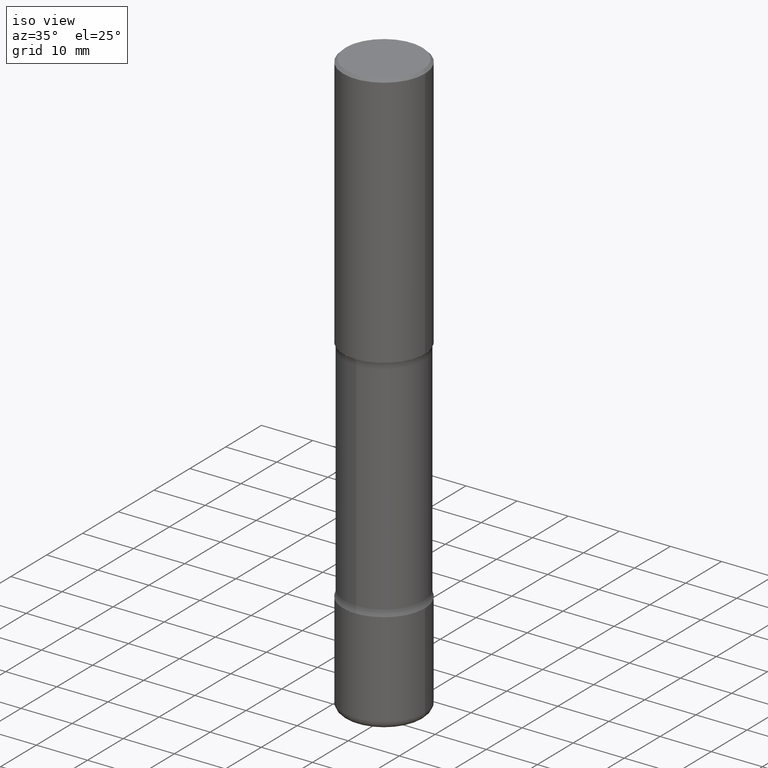
[diagram: clean part render]
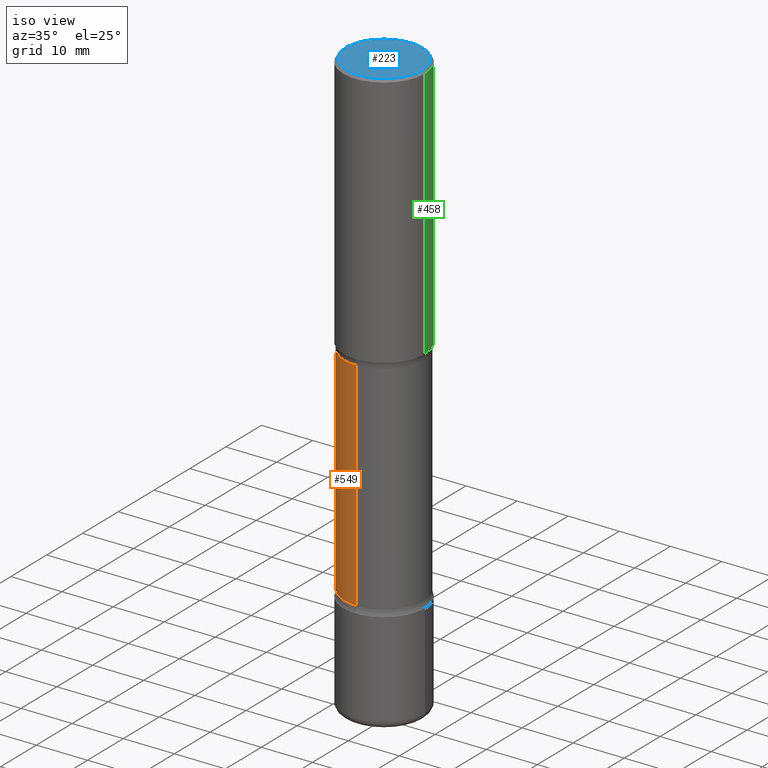
[diagram: same view with three faces highlighted in distinct colors, each labeled with its STEP entity id]
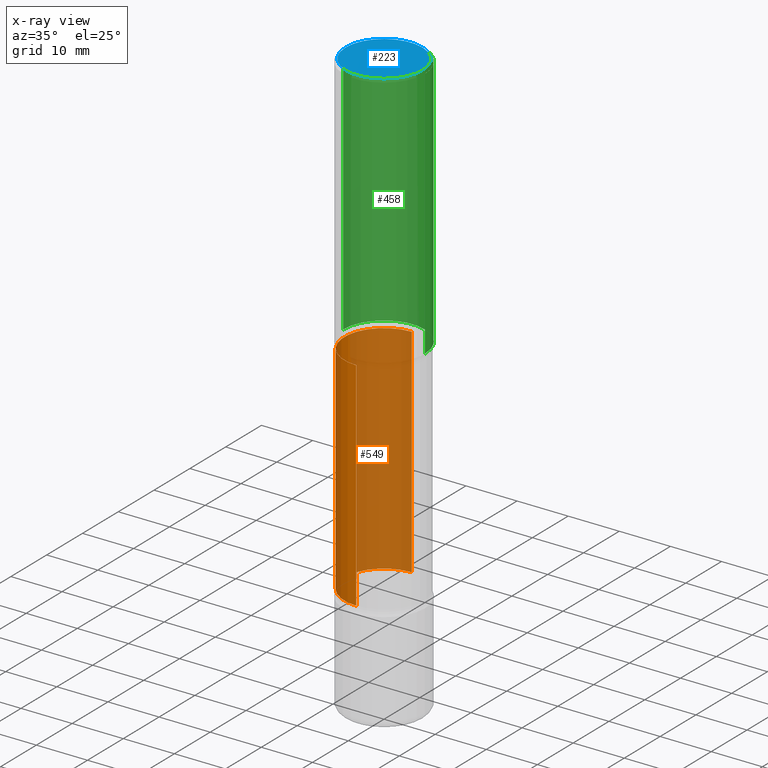
[diagram: x-ray of the same camera — body ghosted, the three highlighted faces saturated]
A machine part, iso view with three faces highlighted in distinct colors.
The next image is the same camera in x-ray (body ghosted, the three faces saturated) — at least one of them is partly hidden behind the body in this view.
Their STEP definitions:

[orange] entity #549 — the highlighted cylindrical surface (partial cylindrical patch) has radius 7.747 mm, axis along (0, -0, -1).
#10 = CIRCLE ( 'NONE', #111, 0.3049999999999999933 ) ;
#20 = FACE_OUTER_BOUND ( 'NONE', #191, .T. ) ;
#27 = VECTOR ( 'NONE', #387, 39.37007874015748143 ) ;
#28 = ORIENTED_EDGE ( 'NONE', *, *, #469, .F. ) ;
#33 = VECTOR ( 'NONE', #195, 39.37007874015748143 ) ;
#43 = AXIS2_PLACEMENT_3D ( 'NONE', #534, #483, #97 ) ;
#59 = CYLINDRICAL_SURFACE ( 'NONE', #43, 0.3049999999999999378 ) ;
#68 = VERTEX_POINT ( 'NONE', #194 ) ;
#74 = ORIENTED_EDGE ( 'NONE', *, *, #169, .T. ) ;
#97 = DIRECTION ( 'NONE',  ( 6.982962677686266711E-15, 1.000000000000000000, -3.582751467100674095E-15 ) ) ;
#111 = AXIS2_PLACEMENT_3D ( 'NONE', #306, #221, #392 ) ;
#112 = VERTEX_POINT ( 'NONE', #161 ) ;
#146 = ORIENTED_EDGE ( 'NONE', *, *, #345, .T. ) ;
#161 = CARTESIAN_POINT ( 'NONE',  ( -2.126582866859139470E-15, -0.3050000000000128719, -3.691327743043725906 ) ) ;
#165 = VERTEX_POINT ( 'NONE', #263 ) ;
#169 = EDGE_CURVE ( 'NONE', #165, #68, #10, .T. ) ;
#175 = VERTEX_POINT ( 'NONE', #283 ) ;
#189 = CIRCLE ( 'NONE', #202, 0.3049999999999999378 ) ;
#191 = EDGE_LOOP ( 'NONE', ( #28, #74, #146, #307 ) ) ;
#194 = CARTESIAN_POINT ( 'NONE',  ( 2.129803616694359388E-15, 0.3049999999999927769, -2.017372256956274867 ) ) ;
#195 = DIRECTION ( 'NONE',  ( 2.510864649412157600E-29, -3.397830769241806549E-15, -1.000000000000000000 ) ) ;
#202 = AXIS2_PLACEMENT_3D ( 'NONE', #234, #228, #536 ) ;
#213 = LINE ( 'NONE', #379, #33 ) ;
#220 = CARTESIAN_POINT ( 'NONE',  ( 2.129803616694422103E-15, 0.3049999999999842282, -4.527600000000001401 ) ) ;
#221 = DIRECTION ( 'NONE',  ( 2.510864649412157880E-29, -3.397830769241806549E-15, -1.000000000000000000 ) ) ;
#228 = DIRECTION ( 'NONE',  ( 2.510864649412157880E-29, -3.397830769241806549E-15, -1.000000000000000000 ) ) ;
#234 = CARTESIAN_POINT ( 'NONE',  ( 9.023830806565153848E-29, -1.289277884509281722E-14, -3.691327743043726795 ) ) ;
#263 = CARTESIAN_POINT ( 'NONE',  ( -2.126582866859183647E-15, -0.3050000000000072098, -2.017372256956272647 ) ) ;
#283 = CARTESIAN_POINT ( 'NONE',  ( 2.129803616694401198E-15, 0.3049999999999870592, -3.691327743043728127 ) ) ;
#306 = CARTESIAN_POINT ( 'NONE',  ( 4.820755151858623476E-29, -7.204961388123744804E-15, -2.017372256956273979 ) ) ;
#307 = ORIENTED_EDGE ( 'NONE', *, *, #544, .F. ) ;
#345 = EDGE_CURVE ( 'NONE', #68, #175, #346, .T. ) ;
#346 = LINE ( 'NONE', #220, #27 ) ;
#379 = CARTESIAN_POINT ( 'NONE',  ( -2.092451889320205392E-15, -0.3050000000000157030, -4.527599999999998737 ) ) ;
#387 = DIRECTION ( 'NONE',  ( 2.510864649412157600E-29, -3.397830769241806549E-15, -1.000000000000000000 ) ) ;
#392 = DIRECTION ( 'NONE',  ( 6.982962677686266711E-15, 1.000000000000000000, -3.582751467100673306E-15 ) ) ;
#469 = EDGE_CURVE ( 'NONE', #165, #112, #213, .T. ) ;
#483 = DIRECTION ( 'NONE',  ( 2.510864649412157880E-29, -3.397830769241806549E-15, -1.000000000000000000 ) ) ;
#534 = CARTESIAN_POINT ( 'NONE',  ( 1.112359725384078225E-28, -1.573429045124212958E-14, -4.527600000000000513 ) ) ;
#536 = DIRECTION ( 'NONE',  ( 6.982962677686266711E-15, 1.000000000000000000, -3.582751467100674095E-15 ) ) ;
#544 = EDGE_CURVE ( 'NONE', #112, #175, #189, .T. ) ;
#549 = ADVANCED_FACE ( 'NONE', ( #20 ), #59, .T. ) ;

[blue] entity #223 — the highlighted planar face has unit normal (0, -0, -1).
#2 = DIRECTION ( 'NONE',  ( 2.438088387897960049E-29, -3.491481338843145188E-15, -1.000000000000000000 ) ) ;
#69 = CIRCLE ( 'NONE', #209, 0.2949499999999998789 ) ;
#120 = EDGE_CURVE ( 'NONE', #222, #411, #358, .T. ) ;
#126 = CARTESIAN_POINT ( 'NONE',  ( 2.059624841783563274E-15, 0.2949499999999998789, -1.023409652156634744E-15 ) ) ;
#141 = FACE_OUTER_BOUND ( 'NONE', #325, .T. ) ;
#143 = ORIENTED_EDGE ( 'NONE', *, *, #401, .T. ) ;
#174 = DIRECTION ( 'NONE',  ( -1.000000000000000000, 6.982962677686265922E-15, -4.876176775795935793E-29 ) ) ;
#205 = DIRECTION ( 'NONE',  ( -2.445468806185136597E-29, 3.491481338843145583E-15, 1.000000000000000000 ) ) ;
#207 = AXIS2_PLACEMENT_3D ( 'NONE', #318, #205, #349 ) ;
#209 = AXIS2_PLACEMENT_3D ( 'NONE', #465, #303, #338 ) ;
#222 = VERTEX_POINT ( 'NONE', #437 ) ;
#223 = ADVANCED_FACE ( 'NONE', ( #141 ), #258, .F. ) ;
#225 = ORIENTED_EDGE ( 'NONE', *, *, #120, .T. ) ;
#258 = PLANE ( 'NONE',  #430 ) ;
#265 = CARTESIAN_POINT ( 'NONE',  ( 0.2949499999999998789, -2.127023677808859286E-15, 1.280553747031588939E-17 ) ) ;
#303 = DIRECTION ( 'NONE',  ( -2.445468806185136597E-29, 3.491481338843145583E-15, 1.000000000000000000 ) ) ;
#318 = CARTESIAN_POINT ( 'NONE',  ( -3.131554243005663153E-46, 4.471029511141347348E-32, 1.280553747030124924E-17 ) ) ;
#325 = EDGE_LOOP ( 'NONE', ( #225, #143 ) ) ;
#338 = DIRECTION ( 'NONE',  ( 1.000000000000000000, -6.982962677686267499E-15, 4.876053491004736589E-29 ) ) ;
#349 = DIRECTION ( 'NONE',  ( 1.000000000000000000, -6.982962677686267499E-15, 4.876053491004736589E-29 ) ) ;
#358 = CIRCLE ( 'NONE', #207, 0.2949499999999998789 ) ;
#401 = EDGE_CURVE ( 'NONE', #411, #222, #69, .T. ) ;
#411 = VERTEX_POINT ( 'NONE', #265 ) ;
#430 = AXIS2_PLACEMENT_3D ( 'NONE', #126, #2, #174 ) ;
#437 = CARTESIAN_POINT ( 'NONE',  ( -0.2949499999999998789, 2.094539655171994924E-15, 1.280553747028672311E-17 ) ) ;
#465 = CARTESIAN_POINT ( 'NONE',  ( -3.131554243005663153E-46, 4.471029511141347348E-32, 1.280553747030124924E-17 ) ) ;

[green] entity #458 — the highlighted cylindrical surface (partial cylindrical patch) has radius 7.9997 mm, axis along (-0, 0, 1).
#6 = EDGE_CURVE ( 'NONE', #287, #248, #539, .T. ) ;
#13 = DIRECTION ( 'NONE',  ( -2.445468806185136597E-29, 3.491481338843145583E-15, 1.000000000000000000 ) ) ;
#34 = FACE_OUTER_BOUND ( 'NONE', #472, .T. ) ;
#51 = DIRECTION ( 'NONE',  ( 1.000000000000000000, -6.982962677686265922E-15, 0.000000000000000000 ) ) ;
#82 = EDGE_CURVE ( 'NONE', #86, #287, #232, .T. ) ;
#86 = VERTEX_POINT ( 'NONE', #361 ) ;
#103 = CARTESIAN_POINT ( 'NONE',  ( 0.3149500000000000077, -2.199284095337289871E-15, 1.535751875536930130E-29 ) ) ;
#122 = DIRECTION ( 'NONE',  ( 1.000000000000000000, -6.982962677686266711E-15, 4.876176775795936353E-29 ) ) ;
#132 = DIRECTION ( 'NONE',  ( -2.445468806185136597E-29, 3.491481338843145583E-15, 1.000000000000000000 ) ) ;
#183 = CARTESIAN_POINT ( 'NONE',  ( -0.3149500000000001743, -1.233550974868359743E-15, -1.968500000000000139 ) ) ;
#185 = VERTEX_POINT ( 'NONE', #183 ) ;
#197 = VECTOR ( 'NONE', #402, 39.37007874015748143 ) ;
#218 = ORIENTED_EDGE ( 'NONE', *, *, #82, .F. ) ;
#232 = LINE ( 'NONE', #103, #197 ) ;
#248 = VERTEX_POINT ( 'NONE', #394 ) ;
#287 = VERTEX_POINT ( 'NONE', #300 ) ;
#300 = CARTESIAN_POINT ( 'NONE',  ( 0.3149499999999998967, -2.230543471175006266E-15, -0.02000000000000006981 ) ) ;
#308 = CARTESIAN_POINT ( 'NONE',  ( 4.813905344975441835E-29, -6.872981015512731707E-15, -1.968500000000000139 ) ) ;
#332 = CARTESIAN_POINT ( 'NONE',  ( 0.000000000000000000, 0.000000000000000000, 0.000000000000000000 ) ) ;
#344 = DIRECTION ( 'NONE',  ( -2.445468806185136597E-29, 3.491481338843145583E-15, 1.000000000000000000 ) ) ;
#347 = ORIENTED_EDGE ( 'NONE', *, *, #6, .F. ) ;
#352 = CARTESIAN_POINT ( 'NONE',  ( -0.3149500000000000077, 2.237854346276435590E-15, -1.549218606675782676E-29 ) ) ;
#361 = CARTESIAN_POINT ( 'NONE',  ( 0.3149500000000001743, -9.072265110850023156E-15, -1.968500000000000139 ) ) ;
#362 = DIRECTION ( 'NONE',  ( -2.445468806185136877E-29, 3.491481338843145188E-15, 1.000000000000000000 ) ) ;
#377 = CYLINDRICAL_SURFACE ( 'NONE', #506, 0.3149500000000000077 ) ;
#384 = AXIS2_PLACEMENT_3D ( 'NONE', #438, #344, #51 ) ;
#394 = CARTESIAN_POINT ( 'NONE',  ( -0.3149499999999998967, 2.129454468560425784E-15, -0.02000000000000006981 ) ) ;
#402 = DIRECTION ( 'NONE',  ( -2.445468806185136877E-29, 3.491481338843145188E-15, 1.000000000000000000 ) ) ;
#420 = ORIENTED_EDGE ( 'NONE', *, *, #508, .T. ) ;
#435 = DIRECTION ( 'NONE',  ( 1.000000000000000000, -6.982962677686269866E-15, 0.000000000000000000 ) ) ;
#438 = CARTESIAN_POINT ( 'NONE',  ( 4.890937612370289799E-31, -6.982962677686315028E-17, -0.02000000000000006981 ) ) ;
#442 = VECTOR ( 'NONE', #362, 39.37007874015748143 ) ;
#444 = LINE ( 'NONE', #352, #442 ) ;
#458 = ADVANCED_FACE ( 'NONE', ( #34 ), #377, .T. ) ;
#472 = EDGE_LOOP ( 'NONE', ( #560, #420, #347, #218 ) ) ;
#477 = AXIS2_PLACEMENT_3D ( 'NONE', #308, #13, #435 ) ;
#497 = CIRCLE ( 'NONE', #477, 0.3149500000000001743 ) ;
#506 = AXIS2_PLACEMENT_3D ( 'NONE', #332, #132, #122 ) ;
#508 = EDGE_CURVE ( 'NONE', #185, #248, #444, .T. ) ;
#524 = EDGE_CURVE ( 'NONE', #86, #185, #497, .T. ) ;
#539 = CIRCLE ( 'NONE', #384, 0.3149499999999998967 ) ;
#560 = ORIENTED_EDGE ( 'NONE', *, *, #524, .T. ) ;